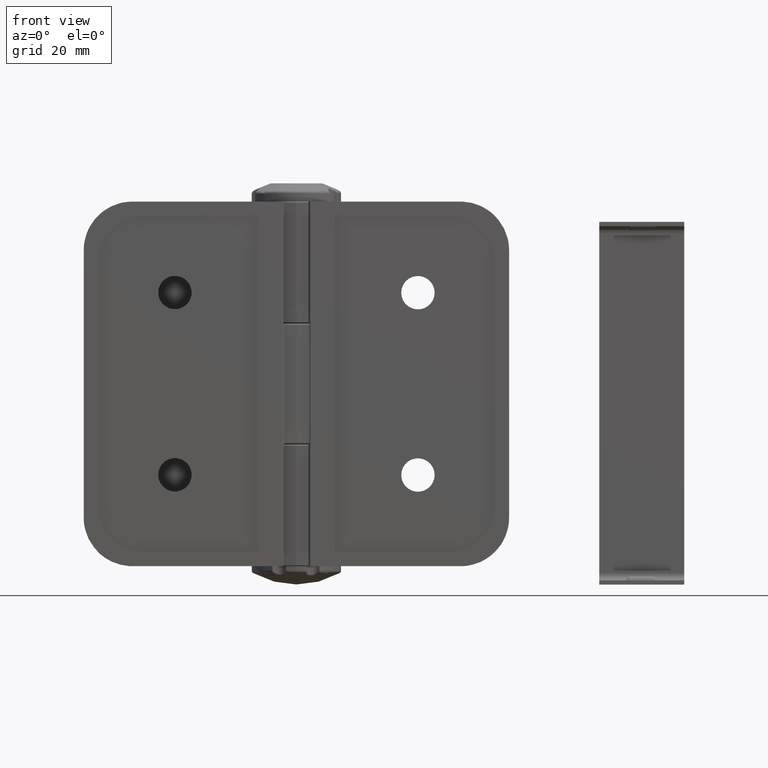
[diagram: clean part render]
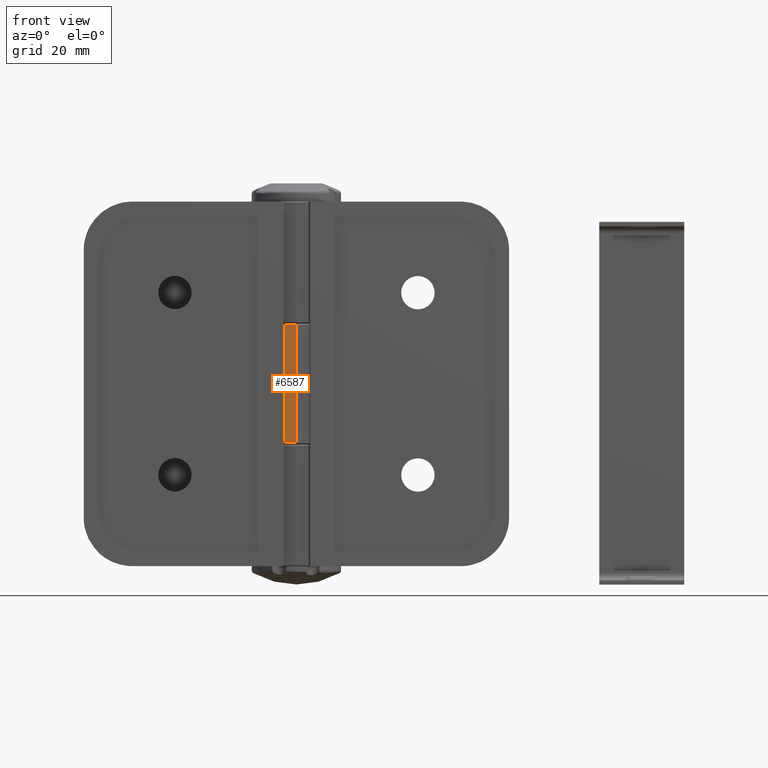
[diagram: same view with one face highlighted and labeled with its STEP entity id]
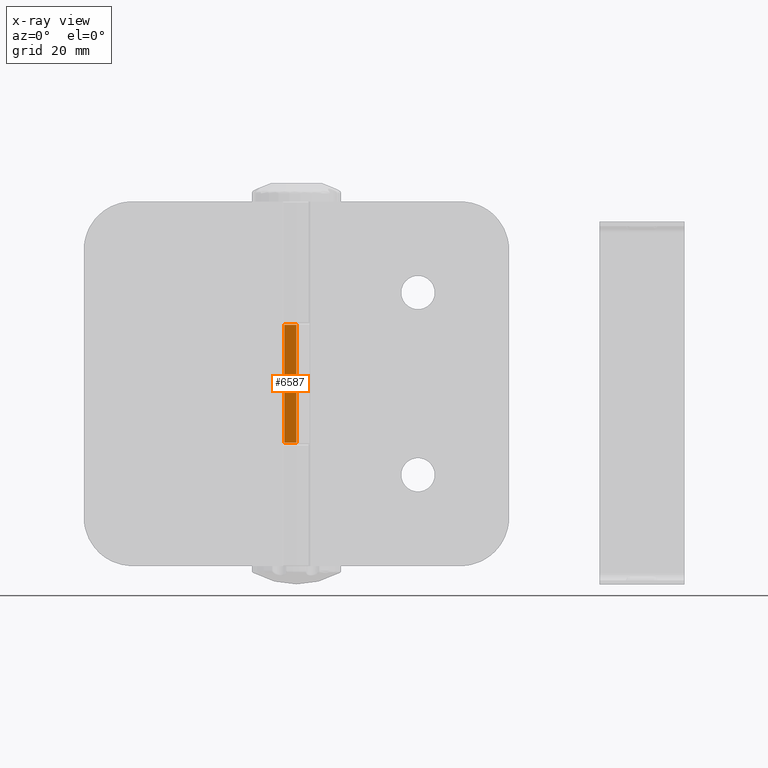
[diagram: x-ray of the same camera — body ghosted, the highlighted face saturated]
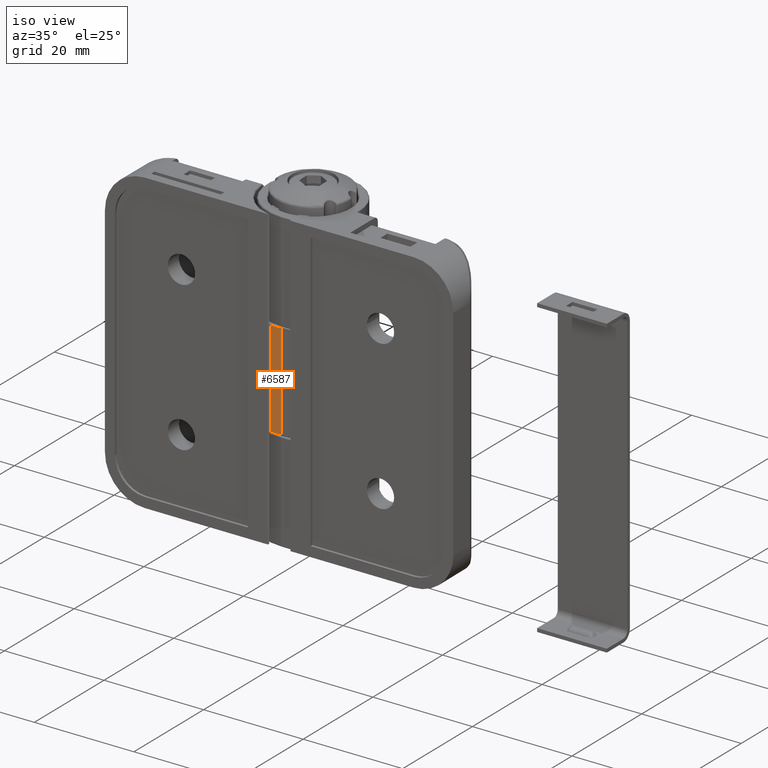
[diagram: same view with one face highlighted and labeled with its STEP entity id]
A machine part, front view. The second image highlights one B-rep face of the part: STEP entity #6587.
The next image is the same camera in x-ray: the body ghosted, the highlighted face saturated — about 0% of this face is hidden behind the body in this view.
A second angle (iso view) of the same face is appended — the face is thin or edge-on in the first view.
In plain terms, the highlighted planar face has unit normal (0, -1, 0).
Its self-contained STEP definition (entity closure, byte-faithful):
#425=PLANE('',#7020);
#563=LINE('',#9743,#979);
#568=LINE('',#9771,#984);
#569=LINE('',#9773,#985);
#570=LINE('',#9774,#986);
#979=VECTOR('',#7787,1.99919938249103);
#984=VECTOR('',#7816,1.99919938249103);
#985=VECTOR('',#7819,19.4);
#986=VECTOR('',#7820,19.4);
#1535=FACE_OUTER_BOUND('',#1948,.T.);
#1948=EDGE_LOOP('',(#4512,#4513,#4514,#4515));
#2804=VERTEX_POINT('',#9732);
#2808=VERTEX_POINT('',#9741);
#2814=VERTEX_POINT('',#9758);
#2818=VERTEX_POINT('',#9767);
#3475=EDGE_CURVE('',#2808,#2804,#563,.T.);
#3489=EDGE_CURVE('',#2814,#2818,#568,.T.);
#3490=EDGE_CURVE('',#2818,#2808,#569,.T.);
#3491=EDGE_CURVE('',#2804,#2814,#570,.T.);
#4512=ORIENTED_EDGE('',*,*,#3475,.F.);
#4513=ORIENTED_EDGE('',*,*,#3490,.F.);
#4514=ORIENTED_EDGE('',*,*,#3489,.F.);
#4515=ORIENTED_EDGE('',*,*,#3491,.F.);
#6587=ADVANCED_FACE('',(#1535),#425,.T.);
#7020=AXIS2_PLACEMENT_3D('',#9772,#7817,#7818);
#7787=DIRECTION('',(-1.,0.,0.));
#7816=DIRECTION('',(1.,0.,0.));
#7817=DIRECTION('center_axis',(0.,-1.,0.));
#7818=DIRECTION('ref_axis',(1.,0.,0.));
#7819=DIRECTION('',(0.,0.,-1.));
#7820=DIRECTION('',(0.,0.,1.));
#9732=CARTESIAN_POINT('',(-2.606459406511E-14,-9.25,20.3));
#9741=CARTESIAN_POINT('',(1.999199382491,-9.25,20.3));
#9743=CARTESIAN_POINT('',(2.84294352301235E-16,-9.25,20.3));
#9758=CARTESIAN_POINT('',(-2.606459406511E-14,-9.25,39.7));
#9767=CARTESIAN_POINT('',(1.999199382491,-9.25,39.7));
#9771=CARTESIAN_POINT('',(-1.61346066074751E-16,-9.25,39.7));
#9772=CARTESIAN_POINT('Origin',(0.,-9.25,0.));
#9773=CARTESIAN_POINT('',(1.999199382491,-9.25,19.9));
#9774=CARTESIAN_POINT('',(-2.606459406511E-14,-9.25,20.2));